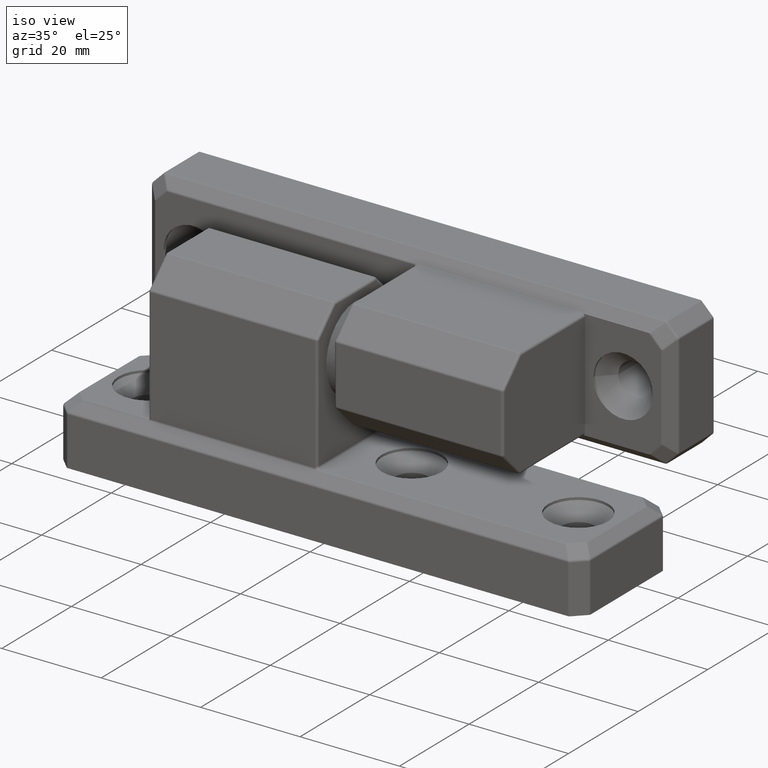
[diagram: clean part render]
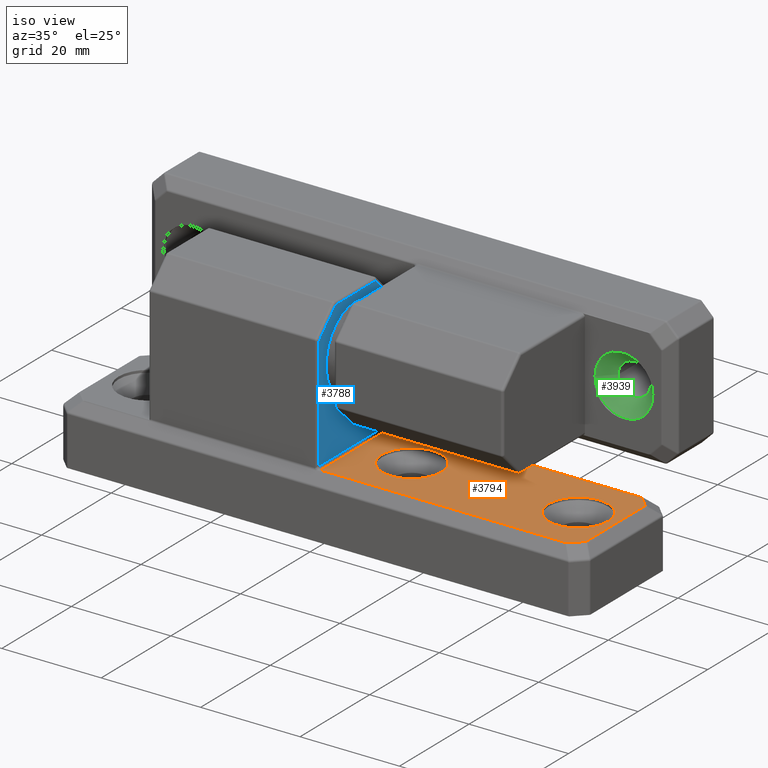
[diagram: same view with three faces highlighted in distinct colors, each labeled with its STEP entity id]
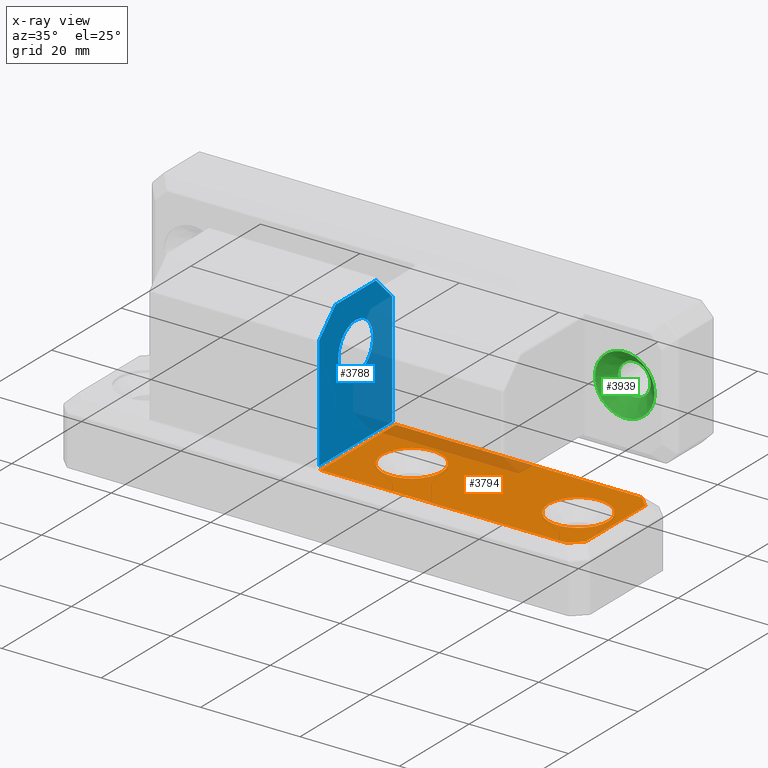
[diagram: x-ray of the same camera — body ghosted, the three highlighted faces saturated]
A machine part, iso view with three faces highlighted in distinct colors.
The next image is the same camera in x-ray (body ghosted, the three faces saturated) — at least one of them is partly hidden behind the body in this view.
Their STEP definitions:

[orange] entity #3794 — the highlighted planar face has unit normal (-0, -0, 1).
#52=FACE_BOUND('',#1214,.T.);
#53=FACE_BOUND('',#1215,.T.);
#113=PLANE('',#4194);
#197=LINE('',#5940,#447);
#245=LINE('',#6171,#495);
#248=LINE('',#6179,#498);
#292=LINE('',#6370,#542);
#296=LINE('',#6426,#546);
#300=LINE('',#6483,#550);
#447=VECTOR('',#4613,3.19615242270665);
#495=VECTOR('',#4815,17.0657443340236);
#498=VECTOR('',#4824,3.19615242270664);
#542=VECTOR('',#5036,21.);
#546=VECTOR('',#5054,49.5767270094269);
#550=VECTOR('',#5072,49.5767270094269);
#933=FACE_OUTER_BOUND('',#1213,.T.);
#1213=EDGE_LOOP('',(#3021,#3022,#3023,#3024,#3025,#3026,#3027,#3028));
#1214=EDGE_LOOP('',(#3029));
#1215=EDGE_LOOP('',(#3030));
#1520=CIRCLE('',#4172,1.);
#1522=CIRCLE('',#4178,1.);
#1529=CIRCLE('',#4195,6.);
#1530=CIRCLE('',#4196,6.);
#1706=VERTEX_POINT('',#5929);
#1709=VERTEX_POINT('',#5936);
#1758=VERTEX_POINT('',#6163);
#1762=VERTEX_POINT('',#6177);
#1804=VERTEX_POINT('',#6367);
#1805=VERTEX_POINT('',#6369);
#1808=VERTEX_POINT('',#6377);
#1811=VERTEX_POINT('',#6434);
#1817=VERTEX_POINT('',#6507);
#1818=VERTEX_POINT('',#6509);
#2029=EDGE_CURVE('',#1706,#1709,#197,.T.);
#2123=EDGE_CURVE('',#1758,#1706,#245,.T.);
#2127=EDGE_CURVE('',#1762,#1758,#248,.T.);
#2211=EDGE_CURVE('',#1804,#1805,#292,.T.);
#2216=EDGE_CURVE('',#1808,#1804,#1520,.T.);
#2221=EDGE_CURVE('',#1709,#1808,#296,.T.);
#2225=EDGE_CURVE('',#1805,#1811,#1522,.T.);
#2231=EDGE_CURVE('',#1811,#1762,#300,.T.);
#2242=EDGE_CURVE('',#1817,#1817,#1529,.T.);
#2243=EDGE_CURVE('',#1818,#1818,#1530,.T.);
#3021=ORIENTED_EDGE('',*,*,#2127,.F.);
#3022=ORIENTED_EDGE('',*,*,#2231,.F.);
#3023=ORIENTED_EDGE('',*,*,#2225,.F.);
#3024=ORIENTED_EDGE('',*,*,#2211,.F.);
#3025=ORIENTED_EDGE('',*,*,#2216,.F.);
#3026=ORIENTED_EDGE('',*,*,#2221,.F.);
#3027=ORIENTED_EDGE('',*,*,#2029,.F.);
#3028=ORIENTED_EDGE('',*,*,#2123,.F.);
#3029=ORIENTED_EDGE('',*,*,#2242,.T.);
#3030=ORIENTED_EDGE('',*,*,#2243,.T.);
#3794=ADVANCED_FACE('',(#933,#52,#53),#113,.T.);
#4172=AXIS2_PLACEMENT_3D('',#6379,#5046,#5047);
#4178=AXIS2_PLACEMENT_3D('',#6435,#5063,#5064);
#4194=AXIS2_PLACEMENT_3D('',#6506,#5103,#5104);
#4195=AXIS2_PLACEMENT_3D('',#6508,#5105,#5106);
#4196=AXIS2_PLACEMENT_3D('',#6510,#5107,#5108);
#4613=DIRECTION('',(-0.707106781186548,-0.707106781186547,0.));
#4815=DIRECTION('',(0.,-1.,0.));
#4824=DIRECTION('',(0.70710678118655,-0.707106781186545,0.));
#5036=DIRECTION('',(-3.41607084500048E-16,1.,0.));
#5046=DIRECTION('center_axis',(0.,0.,1.));
#5047=DIRECTION('ref_axis',(0.98897551981455,-0.148079104560844,0.));
#5054=DIRECTION('',(-1.,0.,0.));
#5063=DIRECTION('center_axis',(0.,0.,1.));
#5064=DIRECTION('ref_axis',(0.988975519814552,0.148079104560831,0.));
#5072=DIRECTION('',(1.,1.25685625429263E-16,0.));
#5103=DIRECTION('center_axis',(0.,0.,1.));
#5104=DIRECTION('ref_axis',(1.,0.,0.));
#5105=DIRECTION('center_axis',(0.,0.,-1.));
#5106=DIRECTION('ref_axis',(1.,0.,0.));
#5107=DIRECTION('center_axis',(0.,0.,-1.));
#5108=DIRECTION('ref_axis',(1.,0.,0.));
#5929=CARTESIAN_POINT('',(50.7928932188135,-8.53287216701176,12.));
#5936=CARTESIAN_POINT('',(48.5328721670118,-10.7928932188134,12.));
#5940=CARTESIAN_POINT('',(39.6628826929126,-19.6628826929126,12.));
#6163=CARTESIAN_POINT('',(50.7928932188135,8.53287216701179,12.));
#6171=CARTESIAN_POINT('',(50.7928932188135,-3.25,12.));
#6177=CARTESIAN_POINT('',(48.5328721670118,10.7928932188135,12.));
#6179=CARTESIAN_POINT('',(39.6628826929125,19.6628826929127,12.));
#6367=CARTESIAN_POINT('',(-0.999999999999987,-10.5,12.));
#6369=CARTESIAN_POINT('',(-0.999999999999994,10.5,12.));
#6370=CARTESIAN_POINT('',(-0.99999999999999,9.61648054418468E-15,12.));
#6377=CARTESIAN_POINT('',(-1.04385484241507,-10.7928932188134,12.));
#6379=CARTESIAN_POINT('Origin',(-1.99999999999998,-10.5,12.));
#6426=CARTESIAN_POINT('',(-13.25,-10.7928932188134,12.));
#6434=CARTESIAN_POINT('',(-1.04385484241507,10.7928932188135,12.));
#6435=CARTESIAN_POINT('Origin',(-1.99999999999999,10.5,12.));
#6483=CARTESIAN_POINT('',(13.25,10.7928932188135,12.));
#6506=CARTESIAN_POINT('Origin',(2.66453525910038E-14,0.,12.));
#6507=CARTESIAN_POINT('',(15.8,0.,12.));
#6508=CARTESIAN_POINT('Origin',(9.80000000000003,0.,12.));
#6509=CARTESIAN_POINT('',(49.3,0.,12.));
#6510=CARTESIAN_POINT('Origin',(43.3,0.,12.));

[blue] entity #3788 — the highlighted planar face has unit normal (1, -0, 0).
#48=FACE_BOUND('',#1204,.T.);
#107=PLANE('',#4184);
#278=LINE('',#6326,#528);
#280=LINE('',#6329,#530);
#287=LINE('',#6342,#537);
#293=LINE('',#6373,#543);
#295=LINE('',#6424,#545);
#301=LINE('',#6485,#551);
#528=VECTOR('',#4978,6.65685424949238);
#530=VECTOR('',#4982,11.5857864376269);
#537=VECTOR('',#4997,6.65685424949239);
#543=VECTOR('',#5039,21.);
#545=VECTOR('',#5051,22.7928932188134);
#551=VECTOR('',#5075,22.7928932188134);
#927=FACE_OUTER_BOUND('',#1203,.T.);
#1203=EDGE_LOOP('',(#2976,#2977,#2978,#2979,#2980,#2981));
#1204=EDGE_LOOP('',(#2982));
#1525=CIRCLE('',#4185,5.);
#1780=VERTEX_POINT('',#6268);
#1786=VERTEX_POINT('',#6282);
#1797=VERTEX_POINT('',#6324);
#1798=VERTEX_POINT('',#6338);
#1803=VERTEX_POINT('',#6366);
#1806=VERTEX_POINT('',#6371);
#1813=VERTEX_POINT('',#6489);
#2189=EDGE_CURVE('',#1797,#1786,#278,.T.);
#2191=EDGE_CURVE('',#1786,#1780,#280,.T.);
#2199=EDGE_CURVE('',#1780,#1798,#287,.T.);
#2213=EDGE_CURVE('',#1806,#1803,#293,.T.);
#2220=EDGE_CURVE('',#1803,#1797,#295,.T.);
#2232=EDGE_CURVE('',#1798,#1806,#301,.T.);
#2234=EDGE_CURVE('',#1813,#1813,#1525,.T.);
#2976=ORIENTED_EDGE('',*,*,#2189,.F.);
#2977=ORIENTED_EDGE('',*,*,#2220,.F.);
#2978=ORIENTED_EDGE('',*,*,#2213,.F.);
#2979=ORIENTED_EDGE('',*,*,#2232,.F.);
#2980=ORIENTED_EDGE('',*,*,#2199,.F.);
#2981=ORIENTED_EDGE('',*,*,#2191,.F.);
#2982=ORIENTED_EDGE('',*,*,#2234,.T.);
#3788=ADVANCED_FACE('',(#927,#48),#107,.T.);
#4184=AXIS2_PLACEMENT_3D('',#6488,#5079,#5080);
#4185=AXIS2_PLACEMENT_3D('',#6490,#5081,#5082);
#4978=DIRECTION('',(-2.4155268595135E-16,0.707106781186548,0.707106781186548));
#4982=DIRECTION('',(-3.41607084500048E-16,1.,0.));
#4997=DIRECTION('',(-2.4155268595135E-16,0.707106781186548,-0.707106781186547));
#5039=DIRECTION('',(3.41607084500048E-16,-1.,0.));
#5051=DIRECTION('',(0.,0.,1.));
#5075=DIRECTION('',(2.58219608910315E-31,-7.55896527404362E-16,-1.));
#5079=DIRECTION('center_axis',(1.,3.41607084500048E-16,0.));
#5080=DIRECTION('ref_axis',(0.,0.,-1.));
#5081=DIRECTION('center_axis',(-1.,-3.41607084500048E-16,0.));
#5082=DIRECTION('ref_axis',(0.,0.,1.));
#6268=CARTESIAN_POINT('',(-1.49999999999999,5.79289321881347,40.));
#6282=CARTESIAN_POINT('',(-1.49999999999999,-5.79289321881343,40.));
#6324=CARTESIAN_POINT('',(-1.49999999999999,-10.5,35.2928932188134));
#6326=CARTESIAN_POINT('',(-1.49999999999999,-7.95549853355165,37.8373946852618));
#6329=CARTESIAN_POINT('',(-1.49999999999999,3.00000000000002,40.));
#6338=CARTESIAN_POINT('',(-1.49999999999999,10.5,35.2928932188134));
#6342=CARTESIAN_POINT('',(-1.49999999999999,10.4554985335517,35.3373946852618));
#6366=CARTESIAN_POINT('',(-1.49999999999999,-10.5,12.5));
#6371=CARTESIAN_POINT('',(-1.49999999999999,10.5,12.5));
#6373=CARTESIAN_POINT('',(-1.49999999999999,9.44567700193465E-15,12.5));
#6424=CARTESIAN_POINT('',(-1.49999999999999,-10.5,30.3818961517101));
#6485=CARTESIAN_POINT('',(-1.49999999999999,10.5,18.6318961517101));
#6488=CARTESIAN_POINT('Origin',(-1.49999999999999,1.94037646306194E-14,
25.2637923034202));
#6489=CARTESIAN_POINT('',(-1.49999999999999,-6.12323399573677E-16,25.));
#6490=CARTESIAN_POINT('Origin',(-1.49999999999999,-1.84889274661175E-31,
30.));

[green] entity #3939 — the highlighted conical surface has half-angle 45 deg.
#37=CONICAL_SURFACE('',#4479,4.625,45.);
#79=FACE_BOUND('',#1386,.T.);
#1078=FACE_OUTER_BOUND('',#1385,.T.);
#1385=EDGE_LOOP('',(#3590));
#1386=EDGE_LOOP('',(#3591));
#1670=CIRCLE('',#4480,6.);
#1671=CIRCLE('',#4481,3.25);
#1976=VERTEX_POINT('',#7250);
#1977=VERTEX_POINT('',#7252);
#2520=EDGE_CURVE('',#1976,#1976,#1670,.T.);
#2521=EDGE_CURVE('',#1977,#1977,#1671,.T.);
#3590=ORIENTED_EDGE('',*,*,#2520,.T.);
#3591=ORIENTED_EDGE('',*,*,#2521,.F.);
#3939=ADVANCED_FACE('',(#1078,#79),#37,.F.);
#4479=AXIS2_PLACEMENT_3D('',#7249,#5798,#5799);
#4480=AXIS2_PLACEMENT_3D('',#7251,#5800,#5801);
#4481=AXIS2_PLACEMENT_3D('',#7253,#5802,#5803);
#5798=DIRECTION('center_axis',(0.,0.,1.));
#5799=DIRECTION('ref_axis',(1.,0.,0.));
#5800=DIRECTION('center_axis',(0.,0.,1.));
#5801=DIRECTION('ref_axis',(1.,0.,0.));
#5802=DIRECTION('center_axis',(0.,0.,1.));
#5803=DIRECTION('ref_axis',(1.,0.,0.));
#7249=CARTESIAN_POINT('Origin',(-43.2,0.,10.125));
#7250=CARTESIAN_POINT('',(-37.2,0.,11.5));
#7251=CARTESIAN_POINT('Origin',(-43.2,0.,11.5));
#7252=CARTESIAN_POINT('',(-39.95,0.,8.75));
#7253=CARTESIAN_POINT('Origin',(-43.2,0.,8.75000000000002));